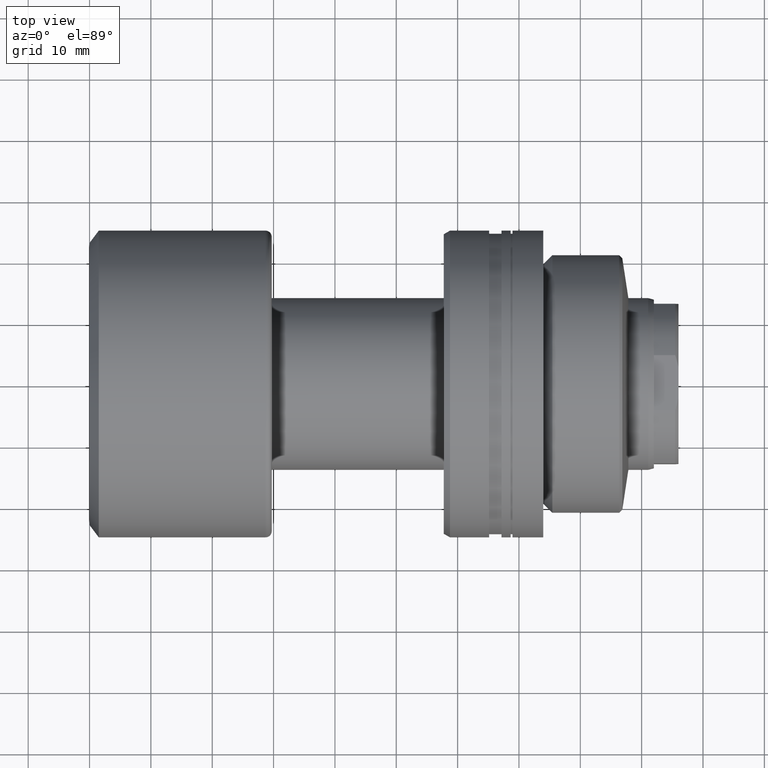
[diagram: clean part render]
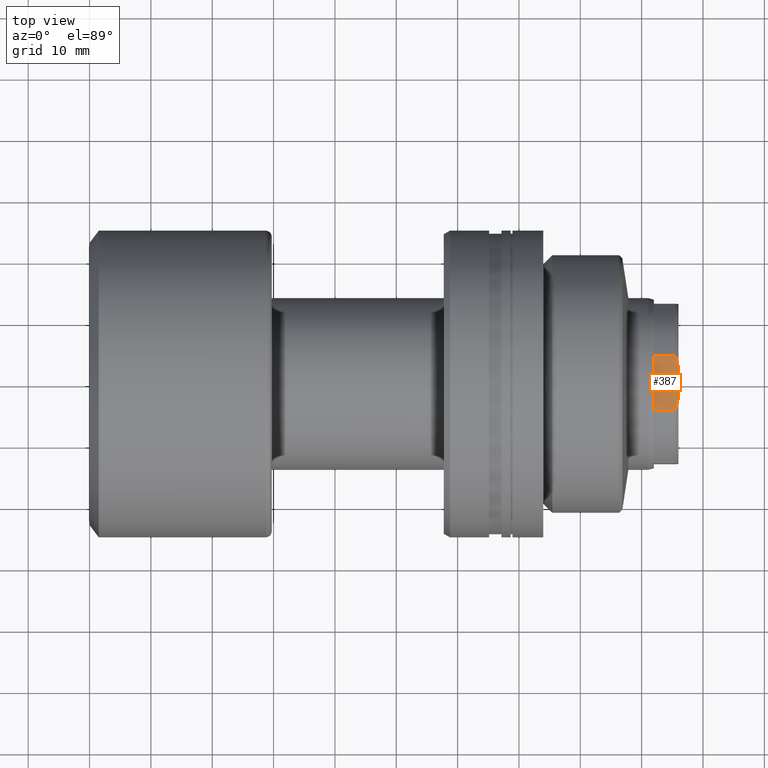
[diagram: same view with one face highlighted and labeled with its STEP entity id]
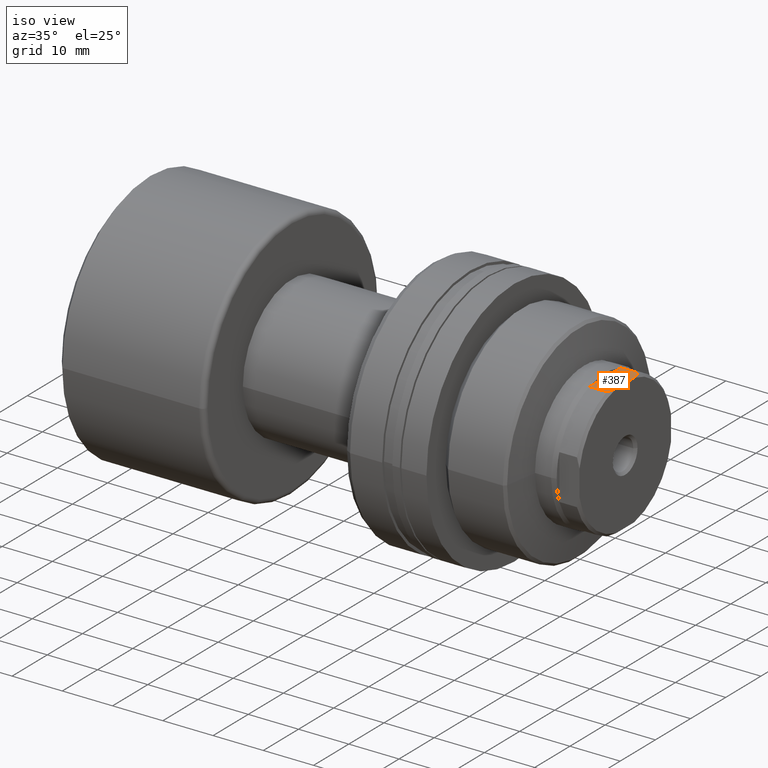
[diagram: same view with one face highlighted and labeled with its STEP entity id]
A machine part, top view. The second image highlights one B-rep face of the part: STEP entity #387.
A second angle (iso view) of the same face is appended — the face is thin or edge-on in the first view.
In plain terms, the highlighted planar face has unit normal (0, 0, -1).
Its self-contained STEP definition (entity closure, byte-faithful):
#55 = CARTESIAN_POINT ( 'NONE',  ( 95.49999999999998579, 4.479118216793666285, 12.99999999999950795 ) ) ;
#64 = ORIENTED_EDGE ( 'NONE', *, *, #2178, .T. ) ;
#142 = LINE ( 'NONE', #165, #681 ) ;
#165 = CARTESIAN_POINT ( 'NONE',  ( 92.00000000000007105, 4.479118216793724017, 12.99999999999950795 ) ) ;
#172 = LINE ( 'NONE', #1592, #2057 ) ;
#192 = VERTEX_POINT ( 'NONE', #1265 ) ;
#212 = CARTESIAN_POINT ( 'NONE',  ( 95.70494638526950837, -3.849973670688483285, 12.99999999999950973 ) ) ;
#374 = EDGE_LOOP ( 'NONE', ( #2106, #2154, #64, #1110, #991, #762 ) ) ;
#387 = ADVANCED_FACE ( 'NONE', ( #599 ), #443, .F. ) ;
#443 = PLANE ( 'NONE',  #680 ) ;
#461 = DIRECTION ( 'NONE',  ( 3.209221117239267283E-30, 1.936456454166250505E-16, -1.000000000000000000 ) ) ;
#512 = EDGE_CURVE ( 'NONE', #1344, #1910, #2036, .T. ) ;
#519 = LINE ( 'NONE', #705, #825 ) ;
#564 = EDGE_CURVE ( 'NONE', #192, #1691, #519, .T. ) ;
#594 = CARTESIAN_POINT ( 'NONE',  ( 95.49999999999997158, -4.479118216793989582, 13.00000000000048672 ) ) ;
#599 = FACE_OUTER_BOUND ( 'NONE', #374, .T. ) ;
#680 = AXIS2_PLACEMENT_3D ( 'NONE', #2049, #461, #1162 ) ;
#681 = VECTOR ( 'NONE', #1021, 1000.000000000000000 ) ;
#705 = CARTESIAN_POINT ( 'NONE',  ( 91.99999999999992895, -4.479118216793763096, 12.99999999999999822 ) ) ;
#706 = EDGE_CURVE ( 'NONE', #1691, #1910, #142, .T. ) ;
#733 = DIRECTION ( 'NONE',  ( 1.000000000000000000, -1.657264799492230625E-14, -0.000000000000000000 ) ) ;
#762 = ORIENTED_EDGE ( 'NONE', *, *, #564, .F. ) ;
#825 = VECTOR ( 'NONE', #1382, 1000.000000000000000 ) ;
#966 = CARTESIAN_POINT ( 'NONE',  ( 96.00000000000004263, 2.561737691489861746, 13.00000000000000000 ) ) ;
#977 = CARTESIAN_POINT ( 'NONE',  ( 95.70494638526909625, 3.849973670688336291, 13.00000000000000000 ) ) ;
#991 = ORIENTED_EDGE ( 'NONE', *, *, #706, .F. ) ;
#1021 = DIRECTION ( 'NONE',  ( 1.000000000000000000, -1.657264799492230625E-14, -0.000000000000000000 ) ) ;
#1063 = VERTEX_POINT ( 'NONE', #1815 ) ;
#1110 = ORIENTED_EDGE ( 'NONE', *, *, #512, .T. ) ;
#1162 = DIRECTION ( 'NONE',  ( 0.000000000000000000, 1.000000000000000000, 1.936456454166250505E-16 ) ) ;
#1212 = DIRECTION ( 'NONE',  ( 1.549165163333000246E-14, 1.000000000000000000, 1.936456454166250505E-16 ) ) ;
#1265 = CARTESIAN_POINT ( 'NONE',  ( 91.99999999999992895, -4.479118216793931850, 13.00000000000048672 ) ) ;
#1344 = VERTEX_POINT ( 'NONE', #966 ) ;
#1369 = B_SPLINE_CURVE_WITH_KNOTS ( 'NONE', 3,
 ( #2142, #212, #1918, #1961 ),
 .UNSPECIFIED., .F., .F.,
 ( 4, 4 ),
 ( 3.256767192668756653E-16, 0.001981501470808064505 ),
 .UNSPECIFIED. ) ;
#1382 = DIRECTION ( 'NONE',  ( 1.549165163333000246E-14, 1.000000000000000000, 1.936456454166250505E-16 ) ) ;
#1406 = CARTESIAN_POINT ( 'NONE',  ( 92.00000000000007105, 4.479118216793724017, 12.99999999999950795 ) ) ;
#1462 = VECTOR ( 'NONE', #733, 1000.000000000000000 ) ;
#1480 = CARTESIAN_POINT ( 'NONE',  ( 95.87436342084423302, 3.211564049334404203, 12.99999999999999822 ) ) ;
#1592 = CARTESIAN_POINT ( 'NONE',  ( 95.99999999999992895, -4.479118216793828822, 12.99999999999999822 ) ) ;
#1605 = CARTESIAN_POINT ( 'NONE',  ( 91.99999999999992895, -4.479118216793931850, 13.00000000000048672 ) ) ;
#1629 = EDGE_CURVE ( 'NONE', #1801, #1063, #1369, .T. ) ;
#1691 = VERTEX_POINT ( 'NONE', #1406 ) ;
#1697 = CARTESIAN_POINT ( 'NONE',  ( 95.49999999999998579, 4.479118216793666285, 12.99999999999950795 ) ) ;
#1801 = VERTEX_POINT ( 'NONE', #594 ) ;
#1815 = CARTESIAN_POINT ( 'NONE',  ( 95.99999999999995737, -2.561737691489785362, 13.00000000000000000 ) ) ;
#1910 = VERTEX_POINT ( 'NONE', #1697 ) ;
#1918 = CARTESIAN_POINT ( 'NONE',  ( 95.87436342084424723, -3.211564049334243443, 12.99999999999999822 ) ) ;
#1947 = LINE ( 'NONE', #1605, #1462 ) ;
#1961 = CARTESIAN_POINT ( 'NONE',  ( 95.99999999999995737, -2.561737691489785362, 13.00000000000000000 ) ) ;
#2036 = B_SPLINE_CURVE_WITH_KNOTS ( 'NONE', 3,
 ( #2190, #1480, #977, #55 ),
 .UNSPECIFIED., .F., .F.,
 ( 4, 4 ),
 ( 9.974659986866640793E-18, 0.001981501470808008994 ),
 .UNSPECIFIED. ) ;
#2049 = CARTESIAN_POINT ( 'NONE',  ( 91.99999999999992895, -4.479118216793763096, 12.99999999999999822 ) ) ;
#2057 = VECTOR ( 'NONE', #1212, 1000.000000000000000 ) ;
#2106 = ORIENTED_EDGE ( 'NONE', *, *, #2152, .T. ) ;
#2142 = CARTESIAN_POINT ( 'NONE',  ( 95.49999999999997158, -4.479118216793989582, 13.00000000000048672 ) ) ;
#2152 = EDGE_CURVE ( 'NONE', #192, #1801, #1947, .T. ) ;
#2154 = ORIENTED_EDGE ( 'NONE', *, *, #1629, .T. ) ;
#2178 = EDGE_CURVE ( 'NONE', #1063, #1344, #172, .T. ) ;
#2190 = CARTESIAN_POINT ( 'NONE',  ( 96.00000000000004263, 2.561737691489861746, 13.00000000000000000 ) ) ;